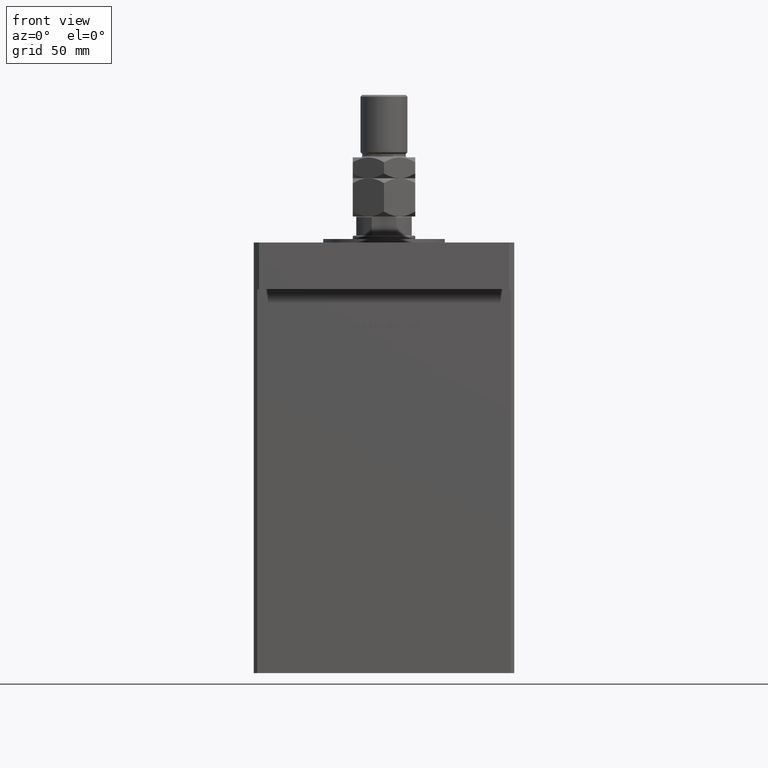
[diagram: clean part render]
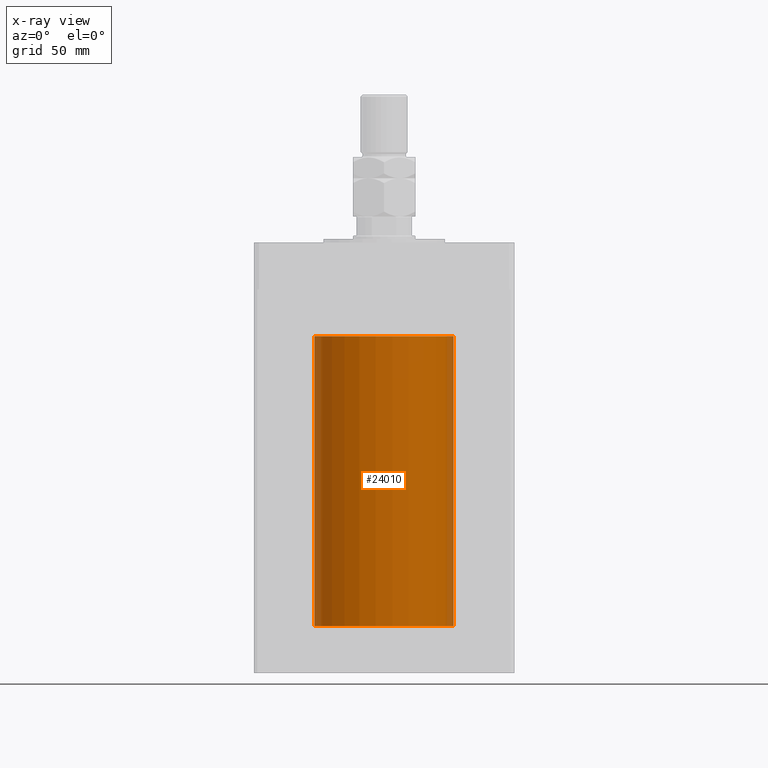
[diagram: x-ray — body ghosted, one internal face saturated and labeled with its STEP entity id]
A machine part, front view, then the same camera in x-ray: the body is ghosted and one INTERNAL B-rep face — a face not visible from any outside direction — is saturated and labeled: STEP entity #24010.
In plain terms, the highlighted cylindrical surface (partial cylindrical patch) has radius 40 mm, axis along (-0, -0, -1).
Its self-contained STEP definition (entity closure, byte-faithful):
#770 = LINE ( 'NONE', #18229, #39979 ) ;
#2282 = VERTEX_POINT ( 'NONE', #2775 ) ;
#2775 = CARTESIAN_POINT ( 'NONE',  ( -40.00000000000000000, 0.000000000000000000, 0.000000000000000000 ) ) ;
#5487 = CYLINDRICAL_SURFACE ( 'NONE', #24425, 40.00000000000000000 ) ;
#7285 = DIRECTION ( 'NONE',  ( -0.000000000000000000, 0.000000000000000000, 1.000000000000000000 ) ) ;
#7299 = ORIENTED_EDGE ( 'NONE', *, *, #28398, .T. ) ;
#7796 = DIRECTION ( 'NONE',  ( 1.000000000000000000, 0.000000000000000000, 0.000000000000000000 ) ) ;
#7934 = ORIENTED_EDGE ( 'NONE', *, *, #21883, .T. ) ;
#7937 = ORIENTED_EDGE ( 'NONE', *, *, #18645, .F. ) ;
#10143 = VERTEX_POINT ( 'NONE', #28497 ) ;
#14302 = VERTEX_POINT ( 'NONE', #20814 ) ;
#16398 = VECTOR ( 'NONE', #28188, 1000.000000000000000 ) ;
#17353 = AXIS2_PLACEMENT_3D ( 'NONE', #45813, #41099, #7796 ) ;
#18229 = CARTESIAN_POINT ( 'NONE',  ( -40.00000000000000000, 0.000000000000000000, 167.0000000000000000 ) ) ;
#18645 = EDGE_CURVE ( 'NONE', #2282, #14302, #27104, .T. ) ;
#20757 = VERTEX_POINT ( 'NONE', #47389 ) ;
#20814 = CARTESIAN_POINT ( 'NONE',  ( 40.00000000000000000, 4.898587196589412237E-15, 0.000000000000000000 ) ) ;
#21883 = EDGE_CURVE ( 'NONE', #10143, #14302, #53993, .T. ) ;
#24010 = ADVANCED_FACE ( 'NONE', ( #39612 ), #5487, .F. ) ;
#24421 = CIRCLE ( 'NONE', #27098, 40.00000000000000000 ) ;
#24425 = AXIS2_PLACEMENT_3D ( 'NONE', #52915, #31809, #40158 ) ;
#24934 = EDGE_LOOP ( 'NONE', ( #7299, #7934, #7937, #47528 ) ) ;
#27098 = AXIS2_PLACEMENT_3D ( 'NONE', #49730, #7285, #49202 ) ;
#27104 = CIRCLE ( 'NONE', #17353, 40.00000000000000000 ) ;
#28188 = DIRECTION ( 'NONE',  ( -0.000000000000000000, -0.000000000000000000, -1.000000000000000000 ) ) ;
#28398 = EDGE_CURVE ( 'NONE', #20757, #10143, #24421, .T. ) ;
#28497 = CARTESIAN_POINT ( 'NONE',  ( 40.00000000000000000, 4.898587196589412237E-15, 167.0000000000000000 ) ) ;
#31809 = DIRECTION ( 'NONE',  ( -0.000000000000000000, -0.000000000000000000, -1.000000000000000000 ) ) ;
#34599 = DIRECTION ( 'NONE',  ( -0.000000000000000000, -0.000000000000000000, -1.000000000000000000 ) ) ;
#37627 = CARTESIAN_POINT ( 'NONE',  ( 40.00000000000000000, 4.898587196589412237E-15, 167.0000000000000000 ) ) ;
#39612 = FACE_OUTER_BOUND ( 'NONE', #24934, .T. ) ;
#39979 = VECTOR ( 'NONE', #34599, 1000.000000000000000 ) ;
#40158 = DIRECTION ( 'NONE',  ( -1.000000000000000000, 0.000000000000000000, 0.000000000000000000 ) ) ;
#41099 = DIRECTION ( 'NONE',  ( -0.000000000000000000, 0.000000000000000000, 1.000000000000000000 ) ) ;
#45813 = CARTESIAN_POINT ( 'NONE',  ( 0.000000000000000000, 0.000000000000000000, 0.000000000000000000 ) ) ;
#47258 = EDGE_CURVE ( 'NONE', #20757, #2282, #770, .T. ) ;
#47389 = CARTESIAN_POINT ( 'NONE',  ( -40.00000000000000000, 0.000000000000000000, 167.0000000000000000 ) ) ;
#47528 = ORIENTED_EDGE ( 'NONE', *, *, #47258, .F. ) ;
#49202 = DIRECTION ( 'NONE',  ( 1.000000000000000000, 0.000000000000000000, 0.000000000000000000 ) ) ;
#49730 = CARTESIAN_POINT ( 'NONE',  ( 0.000000000000000000, 0.000000000000000000, 167.0000000000000000 ) ) ;
#52915 = CARTESIAN_POINT ( 'NONE',  ( 0.000000000000000000, 0.000000000000000000, 167.0000000000000000 ) ) ;
#53993 = LINE ( 'NONE', #37627, #16398 ) ;